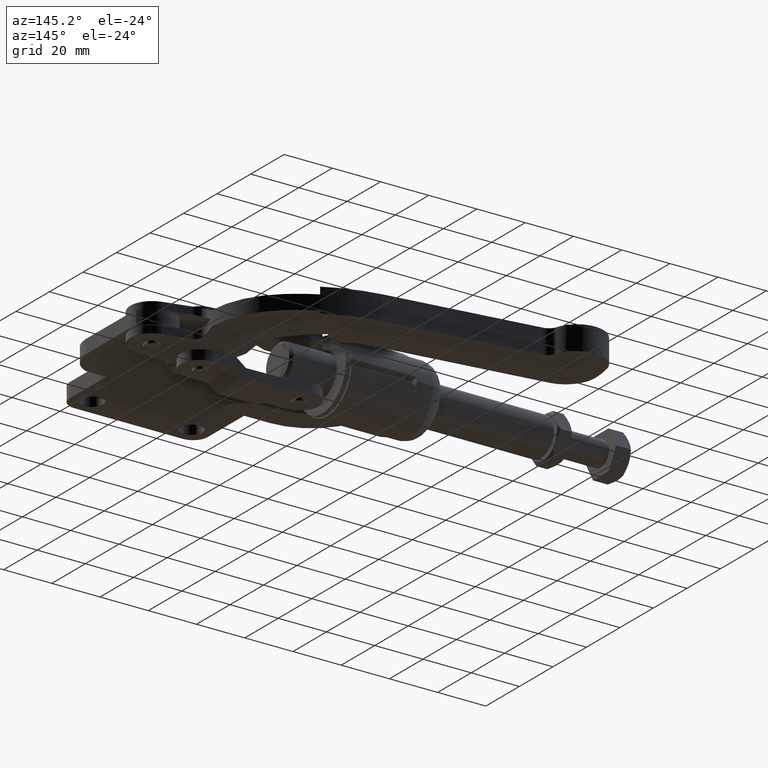
[diagram: clean part render]
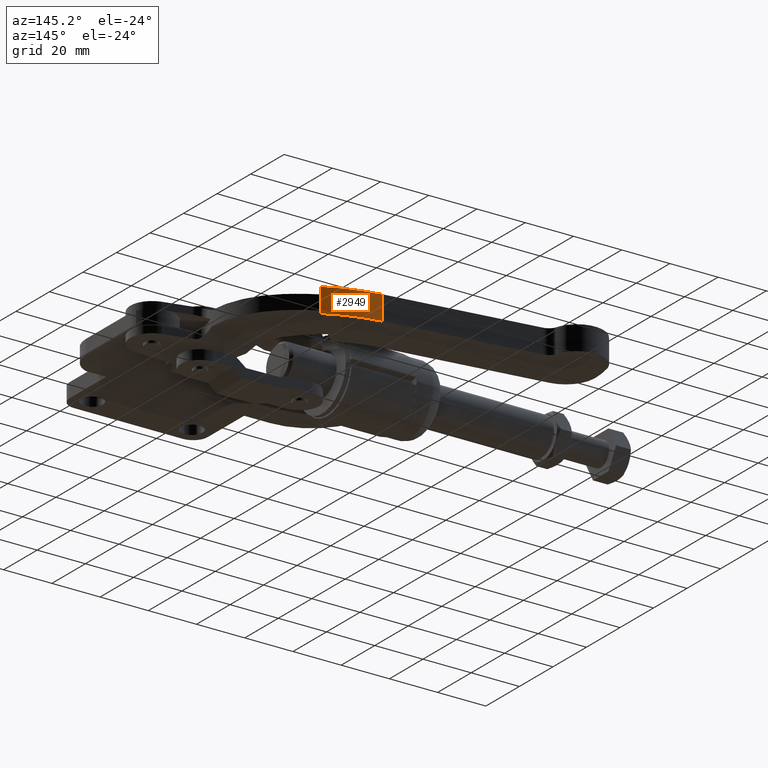
[diagram: same view with one face highlighted and labeled with its STEP entity id]
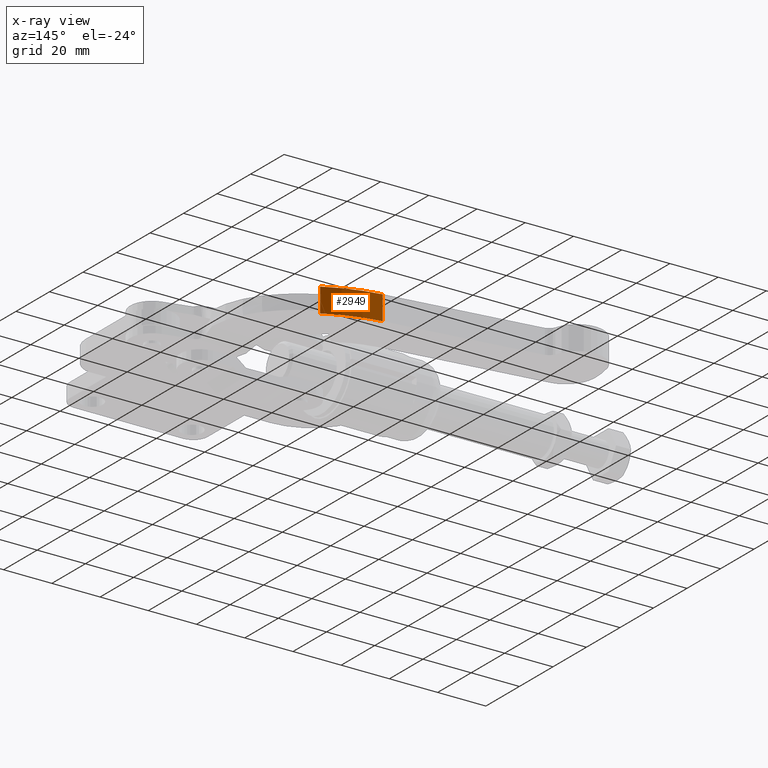
[diagram: x-ray of the same camera — body ghosted, the highlighted face saturated]
A machine part, auxiliary view. The second image highlights one B-rep face of the part: STEP entity #2949.
The next image is the same camera in x-ray: the body ghosted, the highlighted face saturated — about 0% of this face is hidden behind the body in this view.
In plain terms, the highlighted cylindrical surface (partial cylindrical patch) has radius 63.7 mm, axis along (0, -0, -1).
Its self-contained STEP definition (entity closure, byte-faithful):
#78 = CARTESIAN_POINT ( 'NONE',  ( -43.24663130496335800, 93.01786971610445700, 4.999999999999876500 ) ) ;
#259 = AXIS2_PLACEMENT_3D ( 'NONE', #500, #3393, #3191 ) ;
#481 = ORIENTED_EDGE ( 'NONE', *, *, #5530, .T. ) ;
#500 = CARTESIAN_POINT ( 'NONE',  ( -73.00106171353402800, 36.69412808736023400, 4.999999999999885400 ) ) ;
#859 = VERTEX_POINT ( 'NONE', #5591 ) ;
#911 = VECTOR ( 'NONE', #1291, 1000.000000000000000 ) ;
#1291 = DIRECTION ( 'NONE',  ( 6.415676789143483400E-017, -1.996119609410255400E-016, -1.000000000000000000 ) ) ;
#1378 = CARTESIAN_POINT ( 'NONE',  ( -64.40505564650973700, 99.81146864996387100, -5.000000000000126100 ) ) ;
#1931 = ORIENTED_EDGE ( 'NONE', *, *, #5956, .F. ) ;
#2030 = DIRECTION ( 'NONE',  ( 0.9992332293475072500, 0.03915294839155598200, 5.446541525829843400E-017 ) ) ;
#2155 = EDGE_LOOP ( 'NONE', ( #481, #2524, #1931, #7368 ) ) ;
#2444 = VERTEX_POINT ( 'NONE', #1378 ) ;
#2463 = CIRCLE ( 'NONE', #4394, 63.70000000000007400 ) ;
#2524 = ORIENTED_EDGE ( 'NONE', *, *, #7818, .F. ) ;
#2577 = FACE_OUTER_BOUND ( 'NONE', #2155, .T. ) ;
#2949 = ADVANCED_FACE ( 'NONE', ( #2577 ), #4120, .T. ) ;
#2951 = DIRECTION ( 'NONE',  ( 6.415676789143483400E-017, -1.996119609410255400E-016, -1.000000000000000000 ) ) ;
#3168 = CARTESIAN_POINT ( 'NONE',  ( -73.00106171353402800, 36.69412808736023400, 4.999999999999885400 ) ) ;
#3191 = DIRECTION ( 'NONE',  ( -0.9992332293475072500, -0.03915294839155598200, -5.446541525829843400E-017 ) ) ;
#3314 = DIRECTION ( 'NONE',  ( 0.9992332293475072500, 0.03915294839155598200, 5.446541525829843400E-017 ) ) ;
#3393 = DIRECTION ( 'NONE',  ( 6.415676789143483400E-017, -1.996119609410255400E-016, -1.000000000000000000 ) ) ;
#3434 = EDGE_CURVE ( 'NONE', #3983, #859, #4342, .T. ) ;
#3558 = CIRCLE ( 'NONE', #7793, 63.70000000000007400 ) ;
#3983 = VERTEX_POINT ( 'NONE', #5064 ) ;
#4028 = DIRECTION ( 'NONE',  ( -6.415676789143483400E-017, 1.996119609410255400E-016, 1.000000000000000000 ) ) ;
#4120 = CYLINDRICAL_SURFACE ( 'NONE', #259, 63.70000000000007400 ) ;
#4342 = LINE ( 'NONE', #78, #911 ) ;
#4394 = AXIS2_PLACEMENT_3D ( 'NONE', #3168, #4028, #3314 ) ;
#5064 = CARTESIAN_POINT ( 'NONE',  ( -43.24663130496335800, 93.01786971610445700, 4.999999999999876500 ) ) ;
#5087 = VECTOR ( 'NONE', #2951, 1000.000000000000000 ) ;
#5121 = VERTEX_POINT ( 'NONE', #6661 ) ;
#5486 = CARTESIAN_POINT ( 'NONE',  ( -73.00106171353402800, 36.69412808736023400, -5.000000000000114600 ) ) ;
#5530 = EDGE_CURVE ( 'NONE', #859, #2444, #3558, .T. ) ;
#5591 = CARTESIAN_POINT ( 'NONE',  ( -43.24663130496335800, 93.01786971610445700, -5.000000000000123500 ) ) ;
#5956 = EDGE_CURVE ( 'NONE', #3983, #5121, #2463, .T. ) ;
#6661 = CARTESIAN_POINT ( 'NONE',  ( -64.40505564650973700, 99.81146864996387100, 4.999999999999874800 ) ) ;
#6803 = DIRECTION ( 'NONE',  ( -6.415676789143483400E-017, 1.996119609410255400E-016, 1.000000000000000000 ) ) ;
#6877 = LINE ( 'NONE', #7693, #5087 ) ;
#7368 = ORIENTED_EDGE ( 'NONE', *, *, #3434, .T. ) ;
#7693 = CARTESIAN_POINT ( 'NONE',  ( -64.40505564650973700, 99.81146864996387100, 4.999999999999874800 ) ) ;
#7793 = AXIS2_PLACEMENT_3D ( 'NONE', #5486, #6803, #2030 ) ;
#7818 = EDGE_CURVE ( 'NONE', #5121, #2444, #6877, .T. ) ;